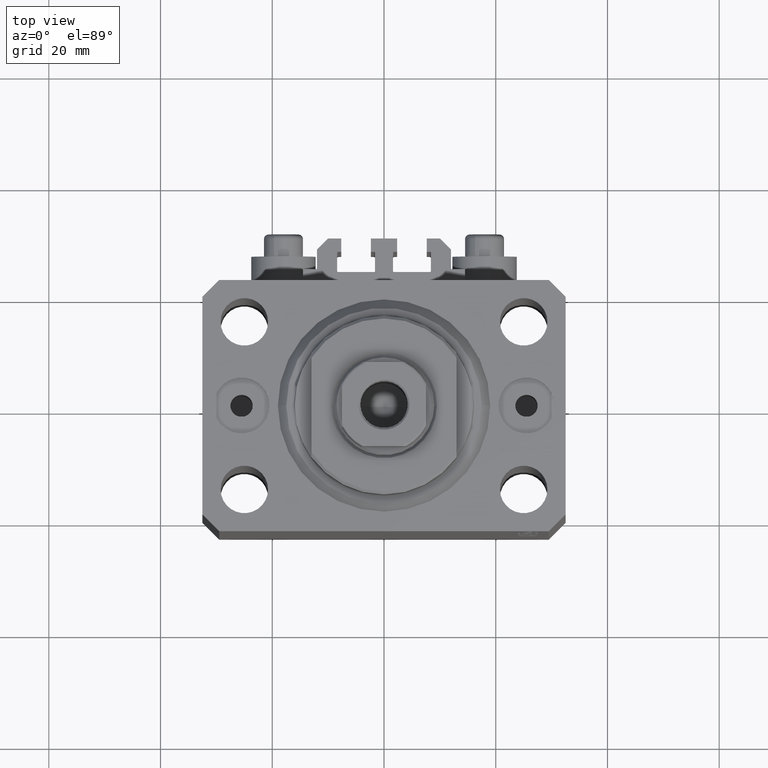
[diagram: clean part render]
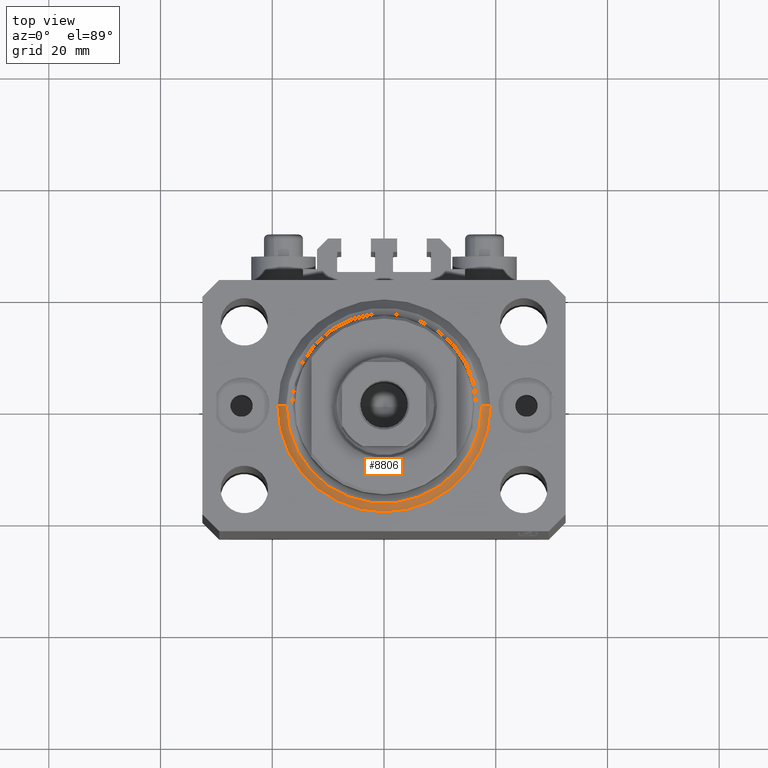
[diagram: same view with one face highlighted and labeled with its STEP entity id]
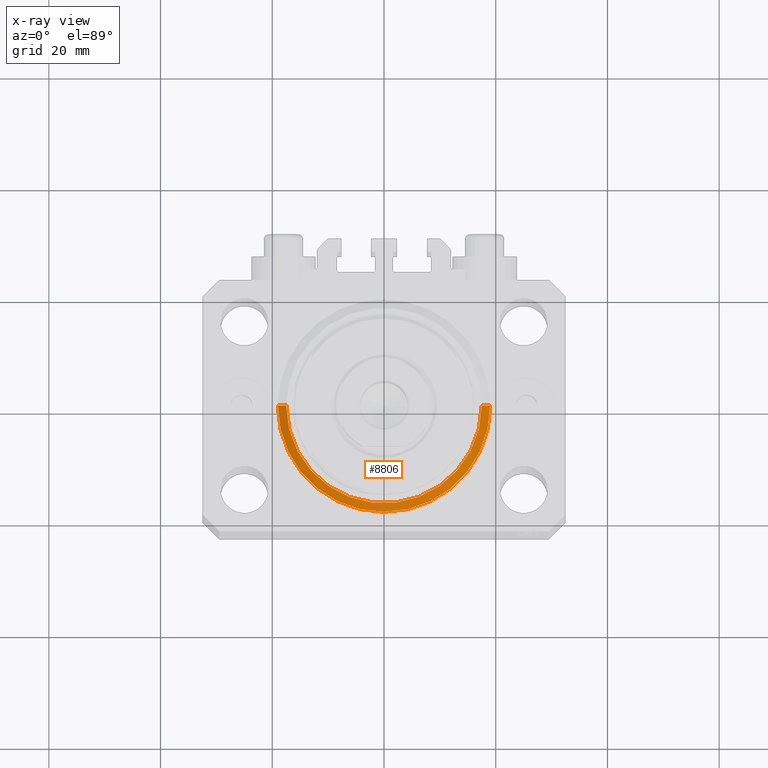
[diagram: x-ray of the same camera — body ghosted, the highlighted face saturated]
A machine part, top view. The second image highlights one B-rep face of the part: STEP entity #8806.
The next image is the same camera in x-ray: the body ghosted, the highlighted face saturated — about 0% of this face is hidden behind the body in this view.
In plain terms, the highlighted conical surface has half-angle 45 deg.
Its self-contained STEP definition (entity closure, byte-faithful):
#2296 = ORIENTED_EDGE ( 'NONE', *, *, #32783, .F. ) ;
#3607 = ORIENTED_EDGE ( 'NONE', *, *, #42153, .F. ) ;
#3739 = DIRECTION ( 'NONE',  ( 1.000000000000000000, 0.000000000000000000, 0.000000000000000000 ) ) ;
#4189 = CARTESIAN_POINT ( 'NONE',  ( 0.000000000000000000, 0.000000000000000000, 1.500000000000004885 ) ) ;
#4800 = CARTESIAN_POINT ( 'NONE',  ( 0.000000000000000000, 0.000000000000000000, 1.500000000000004885 ) ) ;
#5410 = DIRECTION ( 'NONE',  ( -0.000000000000000000, -0.000000000000000000, -1.000000000000000000 ) ) ;
#6140 = CARTESIAN_POINT ( 'NONE',  ( -19.00000000000000000, 2.326828918379970970E-15, 1.500000000000004885 ) ) ;
#6329 = VERTEX_POINT ( 'NONE', #28024 ) ;
#8806 = ADVANCED_FACE ( 'NONE', ( #11817 ), #35703, .T. ) ;
#9088 = DIRECTION ( 'NONE',  ( 1.000000000000000000, 0.000000000000000000, 0.000000000000000000 ) ) ;
#10446 = VECTOR ( 'NONE', #35278, 1000.000000000000000 ) ;
#10628 = EDGE_CURVE ( 'NONE', #6329, #14036, #21848, .T. ) ;
#11817 = FACE_OUTER_BOUND ( 'NONE', #40899, .T. ) ;
#12022 = EDGE_CURVE ( 'NONE', #6329, #18039, #32389, .T. ) ;
#14036 = VERTEX_POINT ( 'NONE', #19563 ) ;
#16621 = DIRECTION ( 'NONE',  ( 1.000000000000000000, 0.000000000000000000, 0.000000000000000000 ) ) ;
#18039 = VERTEX_POINT ( 'NONE', #27813 ) ;
#19563 = CARTESIAN_POINT ( 'NONE',  ( 19.00000000000000000, 2.326828918379970970E-15, 1.500000000000004885 ) ) ;
#20158 = AXIS2_PLACEMENT_3D ( 'NONE', #31671, #5410, #16621 ) ;
#21202 = AXIS2_PLACEMENT_3D ( 'NONE', #4189, #47196, #3739 ) ;
#21848 = LINE ( 'NONE', #37097, #41071 ) ;
#22171 = CIRCLE ( 'NONE', #41216, 19.00000000000000000 ) ;
#24284 = LINE ( 'NONE', #6140, #10446 ) ;
#25844 = CARTESIAN_POINT ( 'NONE',  ( -19.00000000000000000, 0.000000000000000000, 1.500000000000004885 ) ) ;
#27813 = CARTESIAN_POINT ( 'NONE',  ( -17.49999999999999289, 2.234980408443919215E-15, 0.000000000000000000 ) ) ;
#28024 = CARTESIAN_POINT ( 'NONE',  ( 17.49999999999999289, 0.000000000000000000, 0.000000000000000000 ) ) ;
#28704 = ORIENTED_EDGE ( 'NONE', *, *, #10628, .T. ) ;
#28999 = VERTEX_POINT ( 'NONE', #25844 ) ;
#31671 = CARTESIAN_POINT ( 'NONE',  ( 0.000000000000000000, 0.000000000000000000, 0.000000000000000000 ) ) ;
#32389 = CIRCLE ( 'NONE', #20158, 17.49999999999999289 ) ;
#32783 = EDGE_CURVE ( 'NONE', #18039, #28999, #24284, .T. ) ;
#34645 = DIRECTION ( 'NONE',  ( -0.000000000000000000, -0.000000000000000000, 1.000000000000000000 ) ) ;
#35278 = DIRECTION ( 'NONE',  ( -0.7071067811865483499, 8.659560562354943952E-17, 0.7071067811865467956 ) ) ;
#35703 = CONICAL_SURFACE ( 'NONE', #21202, 19.00000000000000000, 0.7853981633974492782 ) ;
#35720 = ORIENTED_EDGE ( 'NONE', *, *, #12022, .F. ) ;
#37097 = CARTESIAN_POINT ( 'NONE',  ( 19.00000000000000000, 0.000000000000000000, 1.500000000000004885 ) ) ;
#40469 = DIRECTION ( 'NONE',  ( 0.7071067811865483499, 0.000000000000000000, 0.7071067811865467956 ) ) ;
#40899 = EDGE_LOOP ( 'NONE', ( #2296, #35720, #28704, #3607 ) ) ;
#41071 = VECTOR ( 'NONE', #40469, 1000.000000000000000 ) ;
#41216 = AXIS2_PLACEMENT_3D ( 'NONE', #4800, #34645, #9088 ) ;
#42153 = EDGE_CURVE ( 'NONE', #28999, #14036, #22171, .T. ) ;
#47196 = DIRECTION ( 'NONE',  ( -0.000000000000000000, -0.000000000000000000, 1.000000000000000000 ) ) ;